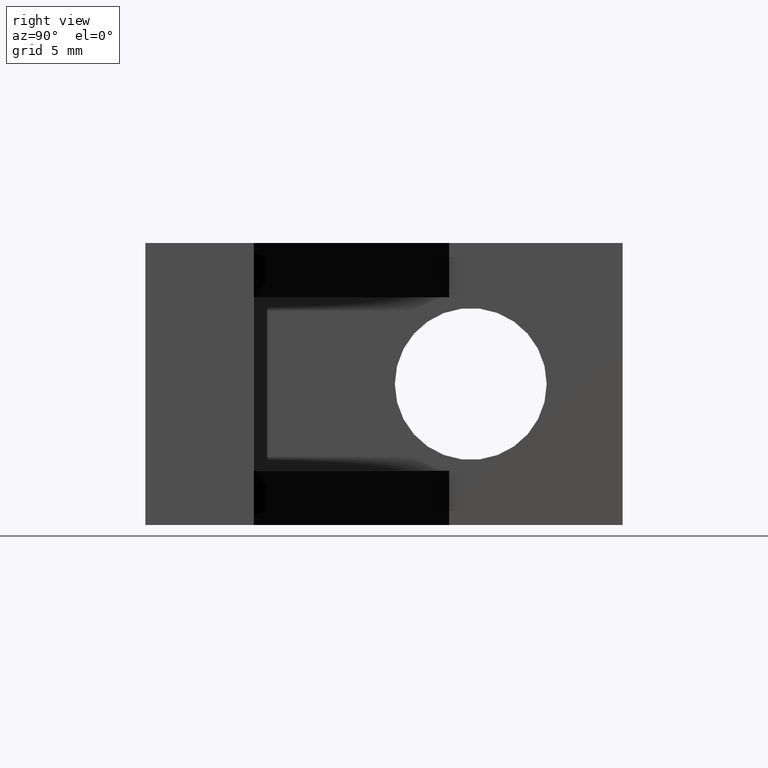
[diagram: clean part render]
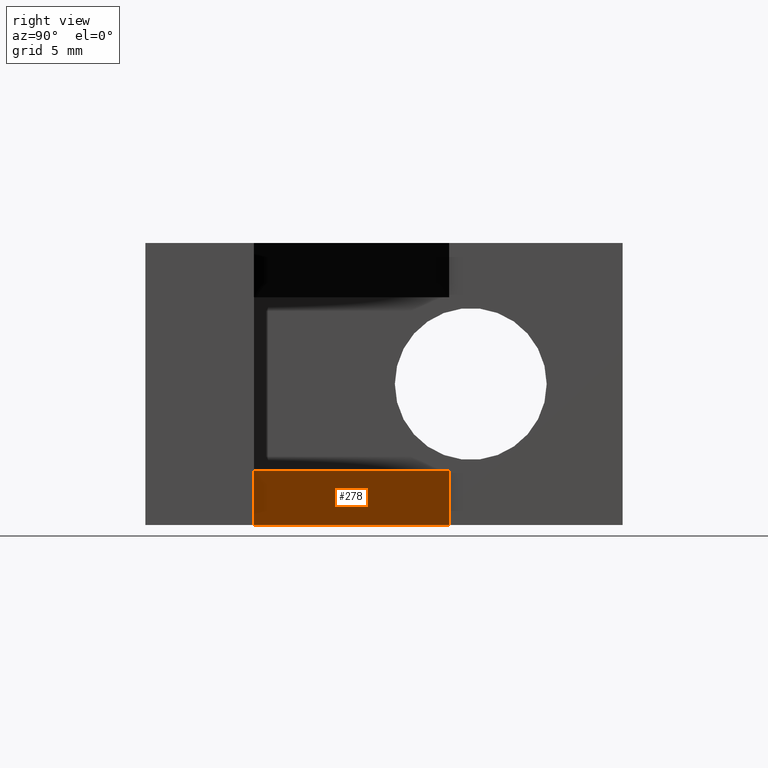
[diagram: same view with one face highlighted and labeled with its STEP entity id]
A machine part, right view. The second image highlights one B-rep face of the part: STEP entity #278.
In plain terms, the highlighted planar face has unit normal (0.7071, 0.7071, 0).
Its self-contained STEP definition (entity closure, byte-faithful):
#30=PLANE('',#319);
#44=FACE_OUTER_BOUND('',#62,.T.);
#62=EDGE_LOOP('',(#259,#260,#261,#262));
#73=LINE('',#422,#105);
#80=LINE('',#436,#112);
#92=LINE('',#458,#124);
#94=LINE('',#463,#126);
#105=VECTOR('',#350,1000.);
#112=VECTOR('',#359,1000.);
#124=VECTOR('',#379,1000.);
#126=VECTOR('',#387,1000.);
#141=VERTEX_POINT('',#419);
#142=VERTEX_POINT('',#421);
#147=VERTEX_POINT('',#433);
#148=VERTEX_POINT('',#435);
#169=EDGE_CURVE('',#141,#142,#73,.T.);
#176=EDGE_CURVE('',#147,#148,#80,.T.);
#188=EDGE_CURVE('',#148,#141,#92,.T.);
#190=EDGE_CURVE('',#147,#142,#94,.T.);
#259=ORIENTED_EDGE('',*,*,#169,.F.);
#260=ORIENTED_EDGE('',*,*,#188,.F.);
#261=ORIENTED_EDGE('',*,*,#176,.F.);
#262=ORIENTED_EDGE('',*,*,#190,.T.);
#278=ADVANCED_FACE('',(#44),#30,.T.);
#319=AXIS2_PLACEMENT_3D('',#464,#388,#389);
#350=DIRECTION('',(0.,0.,1.));
#359=DIRECTION('',(0.,0.,-1.));
#379=DIRECTION('',(0.707106781186547,-0.707106781186548,0.));
#387=DIRECTION('',(0.707106781186547,-0.707106781186548,0.));
#388=DIRECTION('center_axis',(0.707106781186548,0.707106781186547,0.));
#389=DIRECTION('ref_axis',(0.707106781186547,-0.707106781186548,0.));
#419=CARTESIAN_POINT('',(14.,5.,-6.5));
#421=CARTESIAN_POINT('',(14.,5.,-4.));
#422=CARTESIAN_POINT('',(14.,5.,6.5));
#433=CARTESIAN_POINT('',(5.,14.,-4.));
#435=CARTESIAN_POINT('',(5.,14.,-6.5));
#436=CARTESIAN_POINT('',(5.,14.,6.5));
#458=CARTESIAN_POINT('',(5.,14.,-6.5));
#463=CARTESIAN_POINT('',(5.,14.,-4.));
#464=CARTESIAN_POINT('Origin',(5.,14.,-6.5));